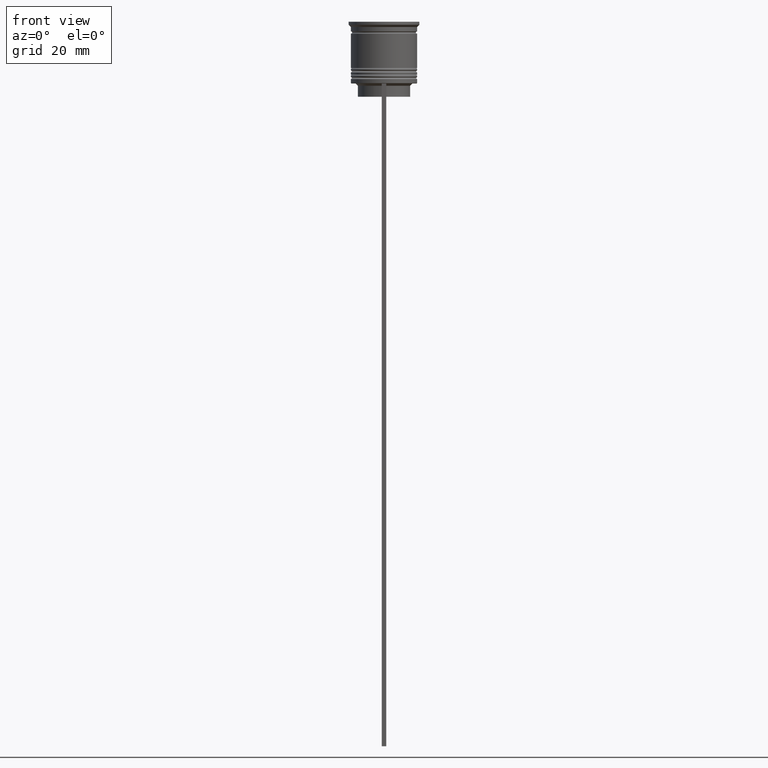
[diagram: clean part render]
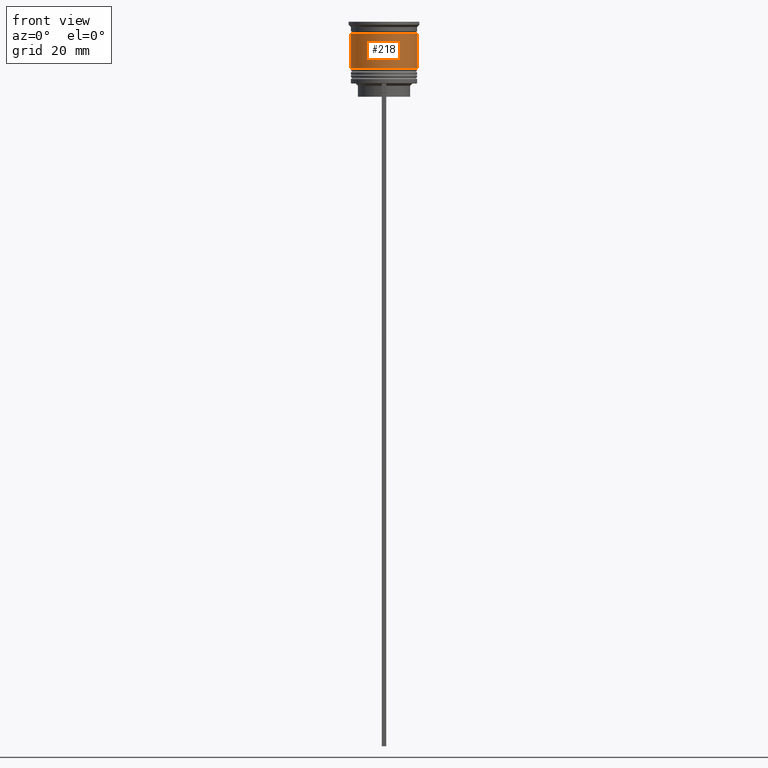
[diagram: same view with one face highlighted and labeled with its STEP entity id]
A machine part, front view. The second image highlights one B-rep face of the part: STEP entity #218.
In plain terms, the highlighted cylindrical surface (edge-blend (fillet) strip) has radius 7.5 mm, axis along (-0, -0, 1).
Its self-contained STEP definition (entity closure, byte-faithful):
#218 = ADVANCED_FACE ( 'NONE', ( #1410 ), #451, .T. ) ;
#255 = CARTESIAN_POINT ( 'NONE',  ( 0.000000000000000000, 0.000000000000000000, 0.000000000000000000 ) ) ;
#258 = CARTESIAN_POINT ( 'NONE',  ( -7.499999999999998224, 9.184850993605145972E-16, -2.700000000000001510 ) ) ;
#323 = ORIENTED_EDGE ( 'NONE', *, *, #1493, .T. ) ;
#336 = CARTESIAN_POINT ( 'NONE',  ( 7.500000000000000000, 0.000000000000000000, 0.000000000000000000 ) ) ;
#402 = CARTESIAN_POINT ( 'NONE',  ( 0.000000000000000000, 0.000000000000000000, -2.700000000000001510 ) ) ;
#451 = CYLINDRICAL_SURFACE ( 'NONE', #1231, 7.500000000000000000 ) ;
#482 = CARTESIAN_POINT ( 'NONE',  ( -7.500000000000001776, 9.184850993605149917E-16, -10.50000000000000000 ) ) ;
#546 = VERTEX_POINT ( 'NONE', #482 ) ;
#587 = CIRCLE ( 'NONE', #1743, 7.499999999999998224 ) ;
#627 = DIRECTION ( 'NONE',  ( -0.000000000000000000, -0.000000000000000000, 1.000000000000000000 ) ) ;
#669 = VERTEX_POINT ( 'NONE', #2273 ) ;
#780 = DIRECTION ( 'NONE',  ( 1.000000000000000000, 0.000000000000000000, 0.000000000000000000 ) ) ;
#909 = VECTOR ( 'NONE', #627, 1000.000000000000000 ) ;
#927 = VERTEX_POINT ( 'NONE', #1041 ) ;
#963 = DIRECTION ( 'NONE',  ( -0.000000000000000000, -0.000000000000000000, 1.000000000000000000 ) ) ;
#992 = AXIS2_PLACEMENT_3D ( 'NONE', #1411, #1208, #780 ) ;
#1001 = DIRECTION ( 'NONE',  ( 1.000000000000000000, 0.000000000000000000, 0.000000000000000000 ) ) ;
#1017 = DIRECTION ( 'NONE',  ( -0.000000000000000000, -0.000000000000000000, 1.000000000000000000 ) ) ;
#1041 = CARTESIAN_POINT ( 'NONE',  ( 7.499999999999998224, 0.000000000000000000, -2.700000000000001510 ) ) ;
#1171 = LINE ( 'NONE', #2151, #909 ) ;
#1205 = ORIENTED_EDGE ( 'NONE', *, *, #1351, .F. ) ;
#1208 = DIRECTION ( 'NONE',  ( -0.000000000000000000, -0.000000000000000000, 1.000000000000000000 ) ) ;
#1231 = AXIS2_PLACEMENT_3D ( 'NONE', #255, #1017, #2393 ) ;
#1337 = EDGE_CURVE ( 'NONE', #1808, #927, #587, .T. ) ;
#1351 = EDGE_CURVE ( 'NONE', #546, #1808, #1171, .T. ) ;
#1410 = FACE_OUTER_BOUND ( 'NONE', #2061, .T. ) ;
#1411 = CARTESIAN_POINT ( 'NONE',  ( 0.000000000000000000, 0.000000000000000000, -10.50000000000000000 ) ) ;
#1493 = EDGE_CURVE ( 'NONE', #669, #927, #1664, .T. ) ;
#1664 = LINE ( 'NONE', #336, #1949 ) ;
#1743 = AXIS2_PLACEMENT_3D ( 'NONE', #402, #963, #1001 ) ;
#1808 = VERTEX_POINT ( 'NONE', #258 ) ;
#1817 = ORIENTED_EDGE ( 'NONE', *, *, #2411, .T. ) ;
#1949 = VECTOR ( 'NONE', #2072, 1000.000000000000000 ) ;
#1971 = ORIENTED_EDGE ( 'NONE', *, *, #1337, .F. ) ;
#2061 = EDGE_LOOP ( 'NONE', ( #1205, #1817, #323, #1971 ) ) ;
#2072 = DIRECTION ( 'NONE',  ( -0.000000000000000000, -0.000000000000000000, 1.000000000000000000 ) ) ;
#2089 = CIRCLE ( 'NONE', #992, 7.500000000000001776 ) ;
#2151 = CARTESIAN_POINT ( 'NONE',  ( -7.500000000000000000, 9.184850993605147944E-16, 0.000000000000000000 ) ) ;
#2273 = CARTESIAN_POINT ( 'NONE',  ( 7.500000000000001776, 0.000000000000000000, -10.50000000000000000 ) ) ;
#2393 = DIRECTION ( 'NONE',  ( 1.000000000000000000, 0.000000000000000000, 0.000000000000000000 ) ) ;
#2411 = EDGE_CURVE ( 'NONE', #546, #669, #2089, .T. ) ;